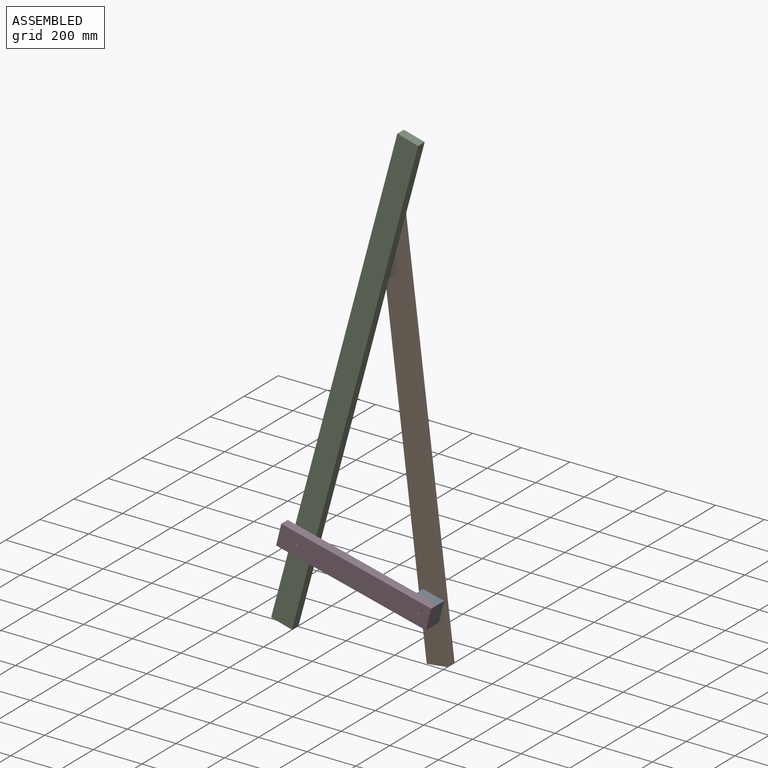
[diagram: assembled view]
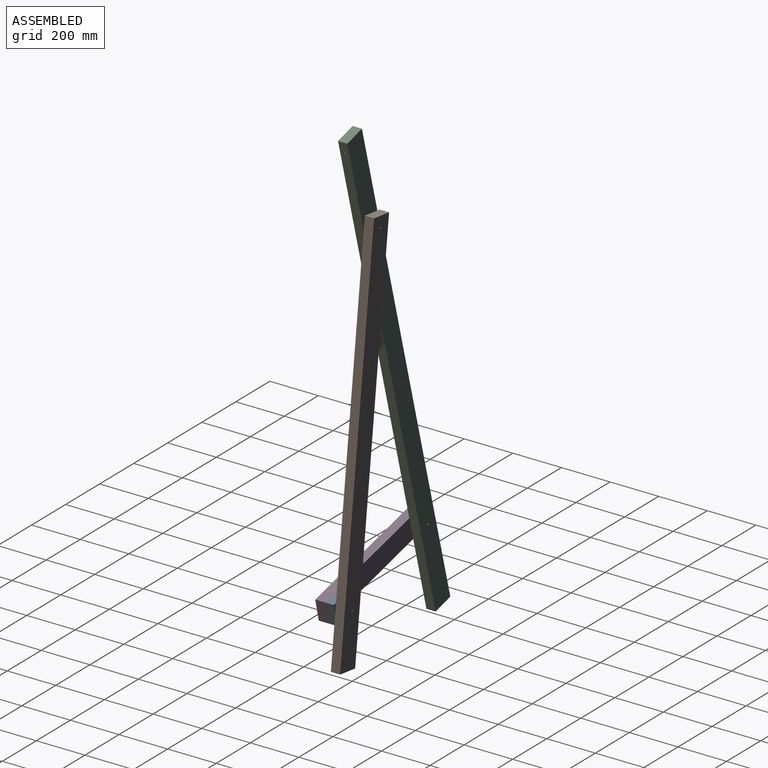
[diagram: assembled view, second angle]
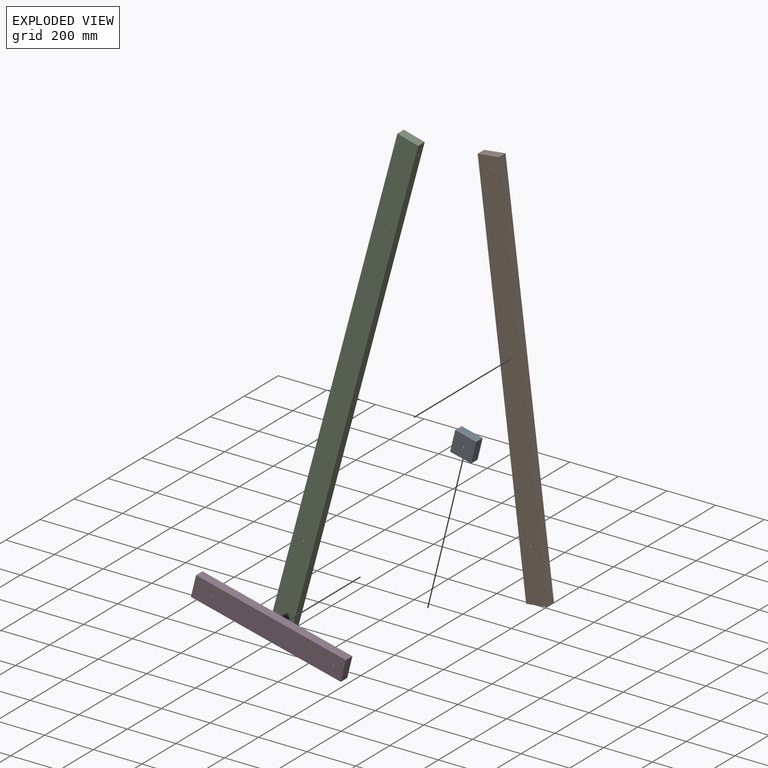
[diagram: exploded view]
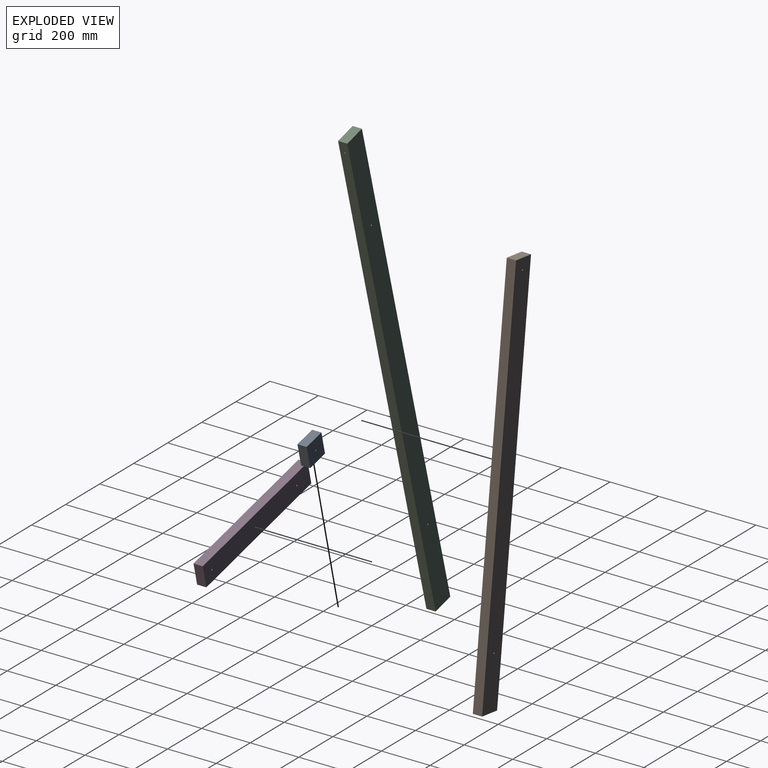
[diagram: exploded view, second angle]
ASSEMBLY  parts=4 mates=5
PART A: 7 faces, bbox 38.1x88.9x88.9 mm
  f0: plane 88.9x88.9mm, normal (1,0,0), area 7870mm2, adj f1,f3,f4,f5,f6
  f1: plane 88.9x38.1mm, normal (0,0,1), area 3387.1mm2, adj f0,f2,f4,f5
  f2: plane 88.9x88.9mm, normal (-1,0,0), area 7870mm2, adj f1,f3,f4,f5,f6
  f3: plane 88.9x38.1mm, normal (0,0,-1), area 3387.1mm2, adj f0,f2,f4,f5
  f4: plane 88.9x38.1mm, normal (0,-1,0), area 3387.1mm2, adj f0,f1,f2,f3
  f5: plane 88.9x38.1mm, normal (0,1,0), area 3387.1mm2, adj f0,f1,f2,f3
  f6: cylinder r=3.25mm len=38.1mm, axis (-1,0,0), area 778mm2, adj f0,f2
PART B: 8 faces, bbox 1632.6x88.9x38.1 mm
  f0: plane 1632.63x38.1mm, normal (0,1,0), area 62203.3mm2, adj f2,f3,f4,f7
  f1: plane 1632.63x38.1mm, normal (0,-1,0), area 62203.3mm2, adj f2,f3,f4,f7
  f2: plane 1632.63x88.9mm, normal (0,0,-1), area 145072.6mm2, adj f0,f1,f4,f5,f6,f7
  f3: plane 1632.63x88.9mm, normal (0,0,1), area 145072.6mm2, adj f0,f1,f4,f5,f6,f7
  f4: plane 88.9x38.1mm, normal (-1,0,0), area 3387.1mm2, adj f0,f1,f2,f3
  f5: cylinder r=3.3mm len=38.1mm, axis (0,0,1), area 790.5mm2, adj f2,f3
  f6: cylinder r=3.3mm len=38.1mm, axis (0,0,1), area 790.5mm2, adj f2,f3
  f7: plane 88.9x38.1mm, normal (1,0,0), area 3387.1mm2, adj f0,f1,f2,f3
PART C: 9 faces, bbox 2006.6x88.9x38.1 mm
  f0: plane 2006.6x88.9mm, normal (0,0,-1), area 178318.2mm2, adj f1,f3,f4,f5,f6,f7
  f1: plane 2006.6x38.1mm, normal (0,1,0), area 76417.2mm2, adj f0,f2,f4,f5,f8
  f2: plane 2006.6x88.9mm, normal (0,0,1), area 178318.2mm2, adj f1,f3,f4,f5,f6,f7
  f3: plane 2006.6x38.1mm, normal (0,-1,0), area 76417.2mm2, adj f0,f2,f4,f5,f8
  f4: plane 88.9x38.1mm, normal (1,0,0), area 3387.1mm2, adj f0,f1,f2,f3
  f5: plane 88.9x38.1mm, normal (-1,0,0), area 3387.1mm2, adj f0,f1,f2,f3
  f6: cylinder r=3.3mm len=38.1mm, axis (0,0,1), area 790.5mm2, adj f0,f2
  f7: cylinder r=3.3mm len=38.1mm, axis (0,0,1), area 790.5mm2, adj f0,f2
  f8: cylinder r=3.3mm len=88.9mm, axis (0,1,0), area 1844.4mm2, adj f1,f3
PART D: 8 faces, bbox 635x88.9x38.1 mm
  f0: plane 635x88.9mm, normal (0,0,-1), area 56383mm2, adj f1,f3,f4,f5,f6,f7
  f1: plane 635x38.1mm, normal (0,1,0), area 24193.5mm2, adj f0,f2,f4,f5
  f2: plane 635x88.9mm, normal (0,0,1), area 56383mm2, adj f1,f3,f4,f5,f6,f7
  f3: plane 635x38.1mm, normal (0,-1,0), area 24193.5mm2, adj f0,f2,f4,f5
  f4: plane 88.9x38.1mm, normal (1,0,0), area 3387.1mm2, adj f0,f1,f2,f3
  f5: plane 88.9x38.1mm, normal (-1,0,0), area 3387.1mm2, adj f0,f1,f2,f3
  f6: cylinder r=3.3mm len=38.1mm, axis (0,0,1), area 790.5mm2, adj f0,f2
  f7: cylinder r=3.3mm len=38.1mm, axis (0,0,1), area 790.5mm2, adj f0,f2
PLACE A rot(axis=(0.12,0.12,0.99),90.8deg) t=(-2258.87,2331.2,941.49)mm
PLACE B rot(axis=(0.62,0.55,-0.55),116deg) t=(-2388.73,2369.3,2336.36)mm
PLACE C rot(axis=(0.68,-0.52,0.52),111.8deg) t=(-2804.03,2331.2,722.03)mm
PLACE D rot(axis=(-0.09,-0.7,-0.7),170.3deg) t=(-2172.52,2293.1,920.35)mm
MATE revolute C.f7 <-> D.f7  axis (0,-1,0) through (-2715.28,2312.15,1053.25)mm
MATE planar A.f3 <-> D.f3  axis (-0.24,0,-0.97) through (-2226.26,2331.2,887.75)mm
MATE cylindrical D.f6 <-> B.f5  axis (0,-1,0) through (-2215.69,2274.05,930.92)mm
MATE revolute B.f6 <-> C.f6  axis (0,-1,0) through (-2383.3,2350.25,2292.24)mm
MATE revolute A.f6 <-> D.f6  axis (0,-1,0) through (-2215.69,2312.15,930.92)mm
